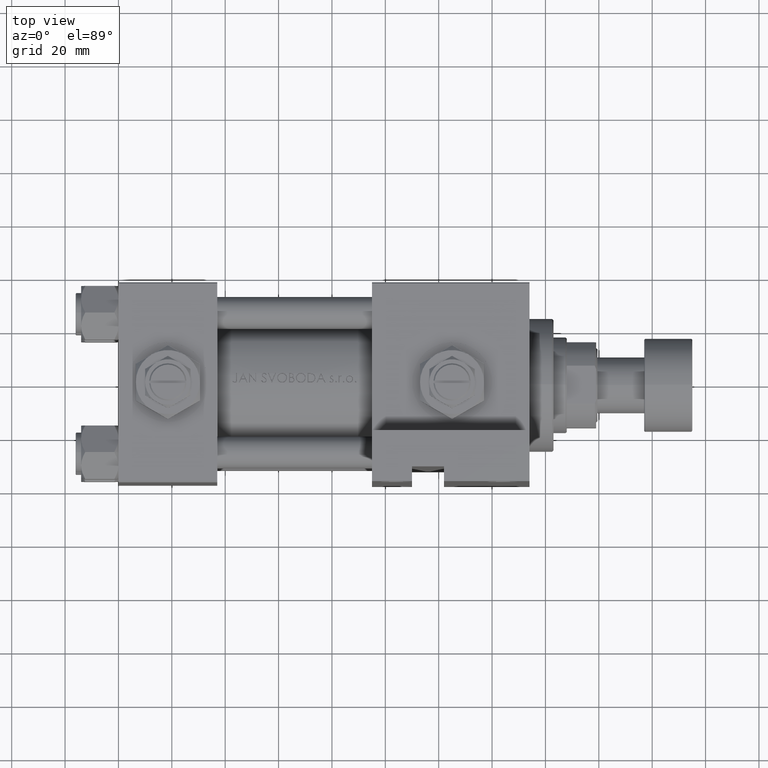
[diagram: clean part render]
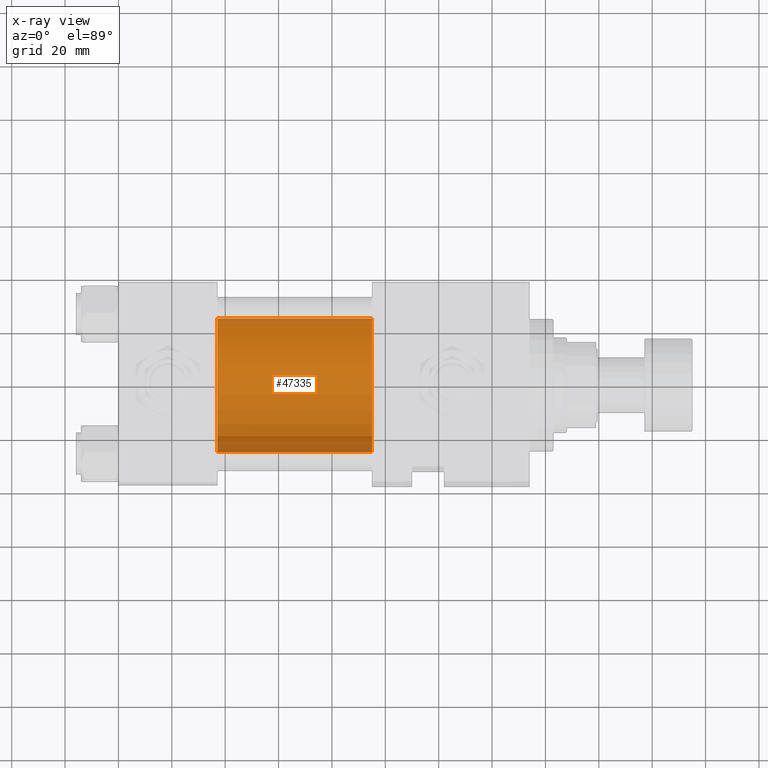
[diagram: x-ray — body ghosted, one internal face saturated and labeled with its STEP entity id]
A machine part, top view, then the same camera in x-ray: the body is ghosted and one INTERNAL B-rep face — a face not visible from any outside direction — is saturated and labeled: STEP entity #47335.
In plain terms, the highlighted cylindrical surface (partial cylindrical patch) has radius 25 mm, axis along (-1, -0, 0).
Its self-contained STEP definition (entity closure, byte-faithful):
#1628 = VECTOR ( 'NONE', #12327, 1000.000000000000000 ) ;
#4711 = LINE ( 'NONE', #12073, #1628 ) ;
#5088 = DIRECTION ( 'NONE',  ( 0.000000000000000000, 0.000000000000000000, 1.000000000000000000 ) ) ;
#8260 = ORIENTED_EDGE ( 'NONE', *, *, #42901, .F. ) ;
#8889 = CYLINDRICAL_SURFACE ( 'NONE', #26726, 25.00000000000000000 ) ;
#8976 = CARTESIAN_POINT ( 'NONE',  ( 37.00000000000000000, 6.123233995736772199E-17, 24.50000000000000000 ) ) ;
#9548 = VERTEX_POINT ( 'NONE', #31397 ) ;
#12027 = EDGE_LOOP ( 'NONE', ( #40169, #23537, #36613, #8260 ) ) ;
#12073 = CARTESIAN_POINT ( 'NONE',  ( 95.00000000000000000, 6.123233995736772199E-17, 24.50000000000000000 ) ) ;
#12327 = DIRECTION ( 'NONE',  ( -1.000000000000000000, -0.000000000000000000, -0.000000000000000000 ) ) ;
#12510 = AXIS2_PLACEMENT_3D ( 'NONE', #48411, #43883, #13416 ) ;
#13416 = DIRECTION ( 'NONE',  ( 0.000000000000000000, 0.000000000000000000, -1.000000000000000000 ) ) ;
#14121 = CIRCLE ( 'NONE', #12510, 25.00000000000000000 ) ;
#14540 = CIRCLE ( 'NONE', #42093, 25.00000000000000000 ) ;
#16089 = VECTOR ( 'NONE', #21814, 1000.000000000000000 ) ;
#21468 = VERTEX_POINT ( 'NONE', #23627 ) ;
#21754 = CARTESIAN_POINT ( 'NONE',  ( 95.00000000000000000, 6.123233995736772199E-17, -0.5000000000000004441 ) ) ;
#21814 = DIRECTION ( 'NONE',  ( -1.000000000000000000, -0.000000000000000000, -0.000000000000000000 ) ) ;
#23537 = ORIENTED_EDGE ( 'NONE', *, *, #23759, .T. ) ;
#23627 = CARTESIAN_POINT ( 'NONE',  ( 95.00000000000000000, 3.122849337825749828E-15, -25.50000000000000355 ) ) ;
#23759 = EDGE_CURVE ( 'NONE', #21468, #9548, #14121, .T. ) ;
#26118 = LINE ( 'NONE', #29175, #16089 ) ;
#26726 = AXIS2_PLACEMENT_3D ( 'NONE', #21754, #33419, #5088 ) ;
#27466 = VERTEX_POINT ( 'NONE', #8976 ) ;
#28194 = FACE_OUTER_BOUND ( 'NONE', #12027, .T. ) ;
#28678 = DIRECTION ( 'NONE',  ( 1.000000000000000000, 0.000000000000000000, 0.000000000000000000 ) ) ;
#28729 = CARTESIAN_POINT ( 'NONE',  ( 37.00000000000000000, 3.122849337825749828E-15, -25.50000000000000355 ) ) ;
#29013 = EDGE_CURVE ( 'NONE', #9548, #27466, #4711, .T. ) ;
#29175 = CARTESIAN_POINT ( 'NONE',  ( 95.00000000000000000, 3.122849337825749828E-15, -25.50000000000000355 ) ) ;
#31397 = CARTESIAN_POINT ( 'NONE',  ( 95.00000000000000000, 6.123233995736772199E-17, 24.50000000000000000 ) ) ;
#33419 = DIRECTION ( 'NONE',  ( -1.000000000000000000, -0.000000000000000000, -0.000000000000000000 ) ) ;
#36613 = ORIENTED_EDGE ( 'NONE', *, *, #29013, .T. ) ;
#40169 = ORIENTED_EDGE ( 'NONE', *, *, #43838, .F. ) ;
#40345 = DIRECTION ( 'NONE',  ( 0.000000000000000000, 0.000000000000000000, -1.000000000000000000 ) ) ;
#40587 = CARTESIAN_POINT ( 'NONE',  ( 37.00000000000000000, 6.123233995736772199E-17, -0.5000000000000004441 ) ) ;
#42093 = AXIS2_PLACEMENT_3D ( 'NONE', #40587, #28678, #40345 ) ;
#42901 = EDGE_CURVE ( 'NONE', #45321, #27466, #14540, .T. ) ;
#43838 = EDGE_CURVE ( 'NONE', #21468, #45321, #26118, .T. ) ;
#43883 = DIRECTION ( 'NONE',  ( 1.000000000000000000, 0.000000000000000000, 0.000000000000000000 ) ) ;
#45321 = VERTEX_POINT ( 'NONE', #28729 ) ;
#47335 = ADVANCED_FACE ( 'NONE', ( #28194 ), #8889, .F. ) ;
#48411 = CARTESIAN_POINT ( 'NONE',  ( 95.00000000000000000, 6.123233995736772199E-17, -0.5000000000000004441 ) ) ;